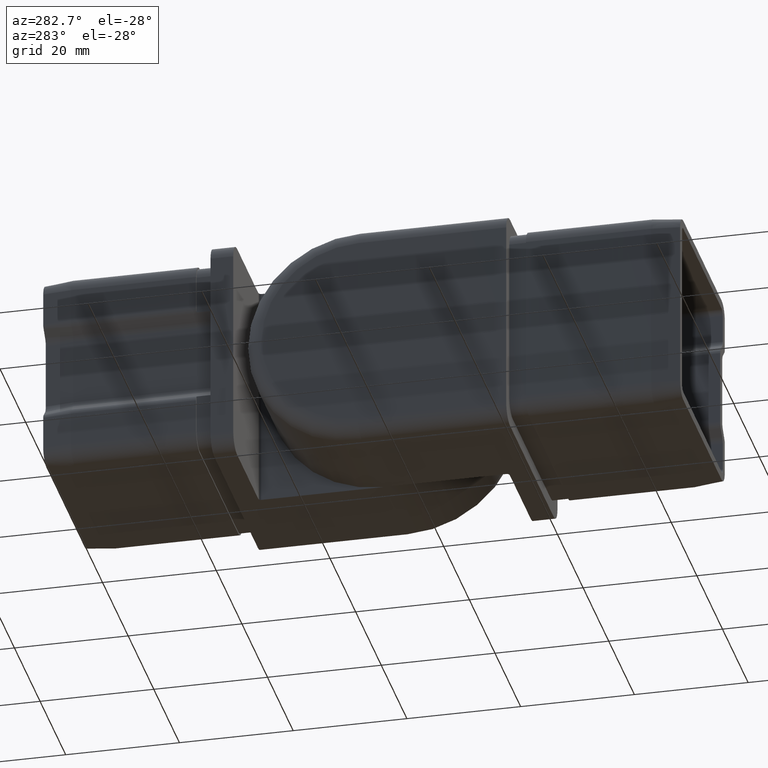
[diagram: clean part render]
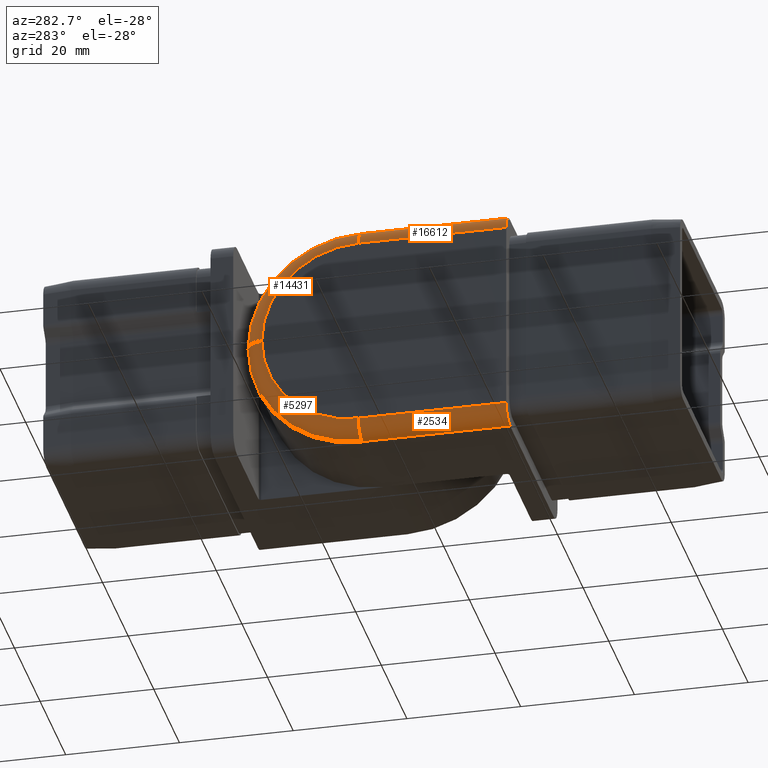
[diagram: same view with one multi-face feature highlighted, each face labeled with its STEP entity id]
A machine part, auxiliary view. The highlighted faces form ONE feature: a constant-radius fillet chain: 4 tangent blend faces with common blend radius 3 mm. The faces share edges in the B-rep.
Their STEP definitions:
[1] entity #14431 (Torus):
#364 = DIRECTION ( 'NONE',  ( -1.000000000000000000, -0.0000000000000000000, 8.673617379884035500E-017 ) ) ;
#618 = DIRECTION ( 'NONE',  ( 0.0000000000000000000, 1.000000000000000000, -0.0000000000000000000 ) ) ;
#914 = DIRECTION ( 'NONE',  ( 1.000000000000000000, 0.0000000000000000000, -8.673617379884035500E-017 ) ) ;
#1355 = CIRCLE ( 'NONE', #4157, 2.999999999999999100 ) ;
#2334 = AXIS2_PLACEMENT_3D ( 'NONE', #14893, #914, #11970 ) ;
#2539 = CARTESIAN_POINT ( 'NONE',  ( -19.99999999999999600, 43.00000000000000000, 2.602085213965211600E-016 ) ) ;
#2559 = VERTEX_POINT ( 'NONE', #2539 ) ;
#3044 = EDGE_CURVE ( 'NONE', #2559, #5501, #1355, .T. ) ;
#3196 = CIRCLE ( 'NONE', #2334, 20.00000000000000000 ) ;
#3360 = TOROIDAL_SURFACE ( 'NONE', #16063, 17.00000000000000000, 3.000000000000000000 ) ;
#3495 = EDGE_CURVE ( 'NONE', #8238, #2559, #7438, .T. ) ;
#3861 = CARTESIAN_POINT ( 'NONE',  ( -16.99999999999999300, 46.00000000000000000, 0.0000000000000000000 ) ) ;
#3984 = EDGE_CURVE ( 'NONE', #5501, #4648, #3196, .T. ) ;
#4157 = AXIS2_PLACEMENT_3D ( 'NONE', #9261, #10730, #12054 ) ;
#4559 = EDGE_CURVE ( 'NONE', #8238, #4648, #17499, .T. ) ;
#4648 = VERTEX_POINT ( 'NONE', #10888 ) ;
#5501 = VERTEX_POINT ( 'NONE', #3861 ) ;
#6205 = DIRECTION ( 'NONE',  ( 0.0000000000000000000, 0.0000000000000000000, 1.000000000000000000 ) ) ;
#6498 = ORIENTED_EDGE ( 'NONE', *, *, #3495, .F. ) ;
#7438 = CIRCLE ( 'NONE', #16438, 17.00000000000000000 ) ;
#8038 = CARTESIAN_POINT ( 'NONE',  ( -16.99999999999999300, 26.00000000000000000, 0.0000000000000000000 ) ) ;
#8154 = FACE_OUTER_BOUND ( 'NONE', #15096, .T. ) ;
#8238 = VERTEX_POINT ( 'NONE', #11863 ) ;
#9168 = ORIENTED_EDGE ( 'NONE', *, *, #3984, .F. ) ;
#9261 = CARTESIAN_POINT ( 'NONE',  ( -16.99999999999999600, 43.00000000000000000, 9.629649721936179300E-032 ) ) ;
#9334 = ORIENTED_EDGE ( 'NONE', *, *, #3044, .F. ) ;
#9476 = DIRECTION ( 'NONE',  ( -8.673617379884035500E-017, 0.0000000000000000000, -1.000000000000000000 ) ) ;
#10140 = DIRECTION ( 'NONE',  ( 0.0000000000000000000, 0.0000000000000000000, -1.000000000000000000 ) ) ;
#10531 = CARTESIAN_POINT ( 'NONE',  ( -16.99999999999999300, 26.00000000000000000, 17.00000000000000000 ) ) ;
#10730 = DIRECTION ( 'NONE',  ( -8.673617379884037900E-017, 6.821001886371457400E-032, -1.000000000000000000 ) ) ;
#10769 = DIRECTION ( 'NONE',  ( 1.000000000000000000, 0.0000000000000000000, -8.673617379884035500E-017 ) ) ;
#10888 = CARTESIAN_POINT ( 'NONE',  ( -16.99999999999999300, 26.00000000000000000, 20.00000000000000000 ) ) ;
#11473 = ORIENTED_EDGE ( 'NONE', *, *, #4559, .T. ) ;
#11863 = CARTESIAN_POINT ( 'NONE',  ( -19.99999999999999300, 26.00000000000000000, 17.00000000000000000 ) ) ;
#11970 = DIRECTION ( 'NONE',  ( 0.0000000000000000000, 0.0000000000000000000, -1.000000000000000000 ) ) ;
#12054 = DIRECTION ( 'NONE',  ( -1.000000000000000000, 0.0000000000000000000, 8.673617379884041600E-017 ) ) ;
#14378 = CARTESIAN_POINT ( 'NONE',  ( -19.99999999999999600, 26.00000000000000000, 2.602085213965211600E-016 ) ) ;
#14431 = ADVANCED_FACE ( 'NONE', ( #8154 ), #3360, .T. ) ;
#14893 = CARTESIAN_POINT ( 'NONE',  ( -16.99999999999999300, 26.00000000000000000, 0.0000000000000000000 ) ) ;
#15096 = EDGE_LOOP ( 'NONE', ( #11473, #9168, #9334, #6498 ) ) ;
#16063 = AXIS2_PLACEMENT_3D ( 'NONE', #8038, #10769, #9476 ) ;
#16438 = AXIS2_PLACEMENT_3D ( 'NONE', #14378, #364, #10140 ) ;
#17178 = AXIS2_PLACEMENT_3D ( 'NONE', #10531, #618, #6205 ) ;
#17499 = CIRCLE ( 'NONE', #17178, 2.999999999999999100 ) ;
[2] entity #16612 (Cylinder):
#134 = EDGE_CURVE ( 'NONE', #1983, #8238, #17917, .T. ) ;
#618 = DIRECTION ( 'NONE',  ( 0.0000000000000000000, 1.000000000000000000, -0.0000000000000000000 ) ) ;
#851 = CARTESIAN_POINT ( 'NONE',  ( -16.99999999999999300, 4.000000000000000000, 17.00000000000000000 ) ) ;
#1007 = ORIENTED_EDGE ( 'NONE', *, *, #7433, .F. ) ;
#1983 = VERTEX_POINT ( 'NONE', #17504 ) ;
#2239 = DIRECTION ( 'NONE',  ( 0.0000000000000000000, -1.000000000000000000, 0.0000000000000000000 ) ) ;
#3095 = ORIENTED_EDGE ( 'NONE', *, *, #14735, .F. ) ;
#3424 = AXIS2_PLACEMENT_3D ( 'NONE', #15264, #5306, #17981 ) ;
#3542 = CIRCLE ( 'NONE', #3424, 2.999999999999999100 ) ;
#3805 = ORIENTED_EDGE ( 'NONE', *, *, #134, .F. ) ;
#3930 = EDGE_LOOP ( 'NONE', ( #1007, #3095, #17537, #3805 ) ) ;
#4017 = VECTOR ( 'NONE', #13082, 1000.000000000000000 ) ;
#4160 = AXIS2_PLACEMENT_3D ( 'NONE', #851, #2239, #13527 ) ;
#4559 = EDGE_CURVE ( 'NONE', #8238, #4648, #17499, .T. ) ;
#4648 = VERTEX_POINT ( 'NONE', #10888 ) ;
#5306 = DIRECTION ( 'NONE',  ( -0.0000000000000000000, -1.000000000000000000, -0.0000000000000000000 ) ) ;
#6205 = DIRECTION ( 'NONE',  ( 0.0000000000000000000, 0.0000000000000000000, 1.000000000000000000 ) ) ;
#7433 = EDGE_CURVE ( 'NONE', #18080, #1983, #3542, .T. ) ;
#7479 = DIRECTION ( 'NONE',  ( 0.0000000000000000000, -1.000000000000000000, 0.0000000000000000000 ) ) ;
#8238 = VERTEX_POINT ( 'NONE', #11863 ) ;
#10353 = FACE_OUTER_BOUND ( 'NONE', #3930, .T. ) ;
#10457 = CARTESIAN_POINT ( 'NONE',  ( -19.99999999999999300, 4.000000000000000000, 17.00000000000000400 ) ) ;
#10531 = CARTESIAN_POINT ( 'NONE',  ( -16.99999999999999300, 26.00000000000000000, 17.00000000000000000 ) ) ;
#10888 = CARTESIAN_POINT ( 'NONE',  ( -16.99999999999999300, 26.00000000000000000, 20.00000000000000000 ) ) ;
#11863 = CARTESIAN_POINT ( 'NONE',  ( -19.99999999999999300, 26.00000000000000000, 17.00000000000000000 ) ) ;
#13082 = DIRECTION ( 'NONE',  ( -0.0000000000000000000, 1.000000000000000000, -0.0000000000000000000 ) ) ;
#13527 = DIRECTION ( 'NONE',  ( 0.0000000000000000000, 0.0000000000000000000, -1.000000000000000000 ) ) ;
#14735 = EDGE_CURVE ( 'NONE', #4648, #18080, #15864, .T. ) ;
#15157 = CYLINDRICAL_SURFACE ( 'NONE', #4160, 2.999999999999999100 ) ;
#15264 = CARTESIAN_POINT ( 'NONE',  ( -16.99999999999999300, 0.0000000000000000000, 17.00000000000000000 ) ) ;
#15437 = CARTESIAN_POINT ( 'NONE',  ( -16.99999999999999300, 0.0000000000000000000, 20.00000000000000000 ) ) ;
#15864 = LINE ( 'NONE', #15920, #17861 ) ;
#15920 = CARTESIAN_POINT ( 'NONE',  ( -16.99999999999999300, 4.000000000000000000, 20.00000000000000000 ) ) ;
#16612 = ADVANCED_FACE ( 'NONE', ( #10353 ), #15157, .T. ) ;
#17178 = AXIS2_PLACEMENT_3D ( 'NONE', #10531, #618, #6205 ) ;
#17499 = CIRCLE ( 'NONE', #17178, 2.999999999999999100 ) ;
#17504 = CARTESIAN_POINT ( 'NONE',  ( -19.99999999999999300, 0.0000000000000000000, 17.00000000000000400 ) ) ;
#17537 = ORIENTED_EDGE ( 'NONE', *, *, #4559, .F. ) ;
#17861 = VECTOR ( 'NONE', #7479, 1000.000000000000000 ) ;
#17917 = LINE ( 'NONE', #10457, #4017 ) ;
#17981 = DIRECTION ( 'NONE',  ( 0.0000000000000000000, 0.0000000000000000000, 1.000000000000000000 ) ) ;
#18080 = VERTEX_POINT ( 'NONE', #15437 ) ;
[3] entity #5297 (Torus):
#77 = DIRECTION ( 'NONE',  ( -8.673617379884035500E-017, 0.0000000000000000000, -1.000000000000000000 ) ) ;
#1355 = CIRCLE ( 'NONE', #4157, 2.999999999999999100 ) ;
#1412 = CARTESIAN_POINT ( 'NONE',  ( -16.99999999999999600, 26.00000000000000000, -17.00000000000000000 ) ) ;
#1514 = DIRECTION ( 'NONE',  ( 1.000000000000000000, 0.0000000000000000000, -8.673617379884035500E-017 ) ) ;
#1580 = AXIS2_PLACEMENT_3D ( 'NONE', #1412, #8359, #11089 ) ;
#2339 = EDGE_CURVE ( 'NONE', #6635, #5501, #11673, .T. ) ;
#2539 = CARTESIAN_POINT ( 'NONE',  ( -19.99999999999999600, 43.00000000000000000, 2.602085213965211600E-016 ) ) ;
#2559 = VERTEX_POINT ( 'NONE', #2539 ) ;
#2560 = CIRCLE ( 'NONE', #1580, 2.999999999999999100 ) ;
#2615 = CARTESIAN_POINT ( 'NONE',  ( -19.99999999999999600, 26.00000000000000000, 2.602085213965211600E-016 ) ) ;
#3044 = EDGE_CURVE ( 'NONE', #2559, #5501, #1355, .T. ) ;
#3452 = CARTESIAN_POINT ( 'NONE',  ( -16.99999999999999300, 26.00000000000000000, 0.0000000000000000000 ) ) ;
#3523 = AXIS2_PLACEMENT_3D ( 'NONE', #12792, #1514, #77 ) ;
#3658 = ORIENTED_EDGE ( 'NONE', *, *, #2339, .F. ) ;
#3861 = CARTESIAN_POINT ( 'NONE',  ( -16.99999999999999300, 46.00000000000000000, 0.0000000000000000000 ) ) ;
#4010 = FACE_OUTER_BOUND ( 'NONE', #15587, .T. ) ;
#4157 = AXIS2_PLACEMENT_3D ( 'NONE', #9261, #10730, #12054 ) ;
#4997 = DIRECTION ( 'NONE',  ( 0.0000000000000000000, 0.0000000000000000000, -1.000000000000000000 ) ) ;
#5196 = EDGE_CURVE ( 'NONE', #2559, #14631, #17911, .T. ) ;
#5297 = ADVANCED_FACE ( 'NONE', ( #4010 ), #12366, .T. ) ;
#5501 = VERTEX_POINT ( 'NONE', #3861 ) ;
#5690 = CARTESIAN_POINT ( 'NONE',  ( -19.99999999999999600, 26.00000000000000000, -17.00000000000000000 ) ) ;
#6635 = VERTEX_POINT ( 'NONE', #8061 ) ;
#6743 = DIRECTION ( 'NONE',  ( -1.000000000000000000, -0.0000000000000000000, 8.673617379884035500E-017 ) ) ;
#8061 = CARTESIAN_POINT ( 'NONE',  ( -16.99999999999999600, 26.00000000000000000, -20.00000000000000000 ) ) ;
#8237 = DIRECTION ( 'NONE',  ( 0.0000000000000000000, 0.0000000000000000000, -1.000000000000000000 ) ) ;
#8359 = DIRECTION ( 'NONE',  ( 0.0000000000000000000, 1.000000000000000000, 0.0000000000000000000 ) ) ;
#9261 = CARTESIAN_POINT ( 'NONE',  ( -16.99999999999999600, 43.00000000000000000, 9.629649721936179300E-032 ) ) ;
#10730 = DIRECTION ( 'NONE',  ( -8.673617379884037900E-017, 6.821001886371457400E-032, -1.000000000000000000 ) ) ;
#10926 = ORIENTED_EDGE ( 'NONE', *, *, #3044, .T. ) ;
#11089 = DIRECTION ( 'NONE',  ( 0.0000000000000000000, 0.0000000000000000000, 1.000000000000000000 ) ) ;
#11591 = AXIS2_PLACEMENT_3D ( 'NONE', #3452, #14656, #4997 ) ;
#11673 = CIRCLE ( 'NONE', #11591, 20.00000000000000000 ) ;
#11897 = EDGE_CURVE ( 'NONE', #6635, #14631, #2560, .T. ) ;
#12054 = DIRECTION ( 'NONE',  ( -1.000000000000000000, 0.0000000000000000000, 8.673617379884041600E-017 ) ) ;
#12366 = TOROIDAL_SURFACE ( 'NONE', #3523, 17.00000000000000000, 3.000000000000000000 ) ;
#12792 = CARTESIAN_POINT ( 'NONE',  ( -16.99999999999999300, 26.00000000000000000, 0.0000000000000000000 ) ) ;
#14096 = AXIS2_PLACEMENT_3D ( 'NONE', #2615, #6743, #8237 ) ;
#14631 = VERTEX_POINT ( 'NONE', #5690 ) ;
#14656 = DIRECTION ( 'NONE',  ( 1.000000000000000000, 0.0000000000000000000, -8.673617379884035500E-017 ) ) ;
#15037 = ORIENTED_EDGE ( 'NONE', *, *, #5196, .F. ) ;
#15587 = EDGE_LOOP ( 'NONE', ( #10926, #3658, #16720, #15037 ) ) ;
#16720 = ORIENTED_EDGE ( 'NONE', *, *, #11897, .T. ) ;
#17911 = CIRCLE ( 'NONE', #14096, 17.00000000000000000 ) ;
[4] entity #2534 (Cylinder):
#72 = CYLINDRICAL_SURFACE ( 'NONE', #14435, 2.999999999999999100 ) ;
#293 = EDGE_CURVE ( 'NONE', #4732, #12174, #1869, .T. ) ;
#492 = EDGE_LOOP ( 'NONE', ( #9301, #5167, #15022, #11705 ) ) ;
#785 = CARTESIAN_POINT ( 'NONE',  ( -19.99999999999999600, 0.0000000000000000000, -17.00000000000000000 ) ) ;
#1080 = DIRECTION ( 'NONE',  ( 0.0000000000000000000, -1.000000000000000000, 0.0000000000000000000 ) ) ;
#1412 = CARTESIAN_POINT ( 'NONE',  ( -16.99999999999999600, 26.00000000000000000, -17.00000000000000000 ) ) ;
#1448 = CARTESIAN_POINT ( 'NONE',  ( -16.99999999999999600, 4.000000000000000000, -20.00000000000000000 ) ) ;
#1580 = AXIS2_PLACEMENT_3D ( 'NONE', #1412, #8359, #11089 ) ;
#1869 = CIRCLE ( 'NONE', #12379, 2.999999999999999100 ) ;
#2143 = DIRECTION ( 'NONE',  ( 0.0000000000000000000, -1.000000000000000000, 0.0000000000000000000 ) ) ;
#2534 = ADVANCED_FACE ( 'NONE', ( #10582 ), #72, .T. ) ;
#2560 = CIRCLE ( 'NONE', #1580, 2.999999999999999100 ) ;
#4702 = CARTESIAN_POINT ( 'NONE',  ( -16.99999999999999600, 0.0000000000000000000, -20.00000000000000000 ) ) ;
#4732 = VERTEX_POINT ( 'NONE', #785 ) ;
#5167 = ORIENTED_EDGE ( 'NONE', *, *, #8934, .F. ) ;
#5384 = CARTESIAN_POINT ( 'NONE',  ( -16.99999999999999600, 0.0000000000000000000, -17.00000000000000000 ) ) ;
#5690 = CARTESIAN_POINT ( 'NONE',  ( -19.99999999999999600, 26.00000000000000000, -17.00000000000000000 ) ) ;
#6635 = VERTEX_POINT ( 'NONE', #8061 ) ;
#7673 = VECTOR ( 'NONE', #2143, 1000.000000000000000 ) ;
#8061 = CARTESIAN_POINT ( 'NONE',  ( -16.99999999999999600, 26.00000000000000000, -20.00000000000000000 ) ) ;
#8359 = DIRECTION ( 'NONE',  ( 0.0000000000000000000, 1.000000000000000000, 0.0000000000000000000 ) ) ;
#8934 = EDGE_CURVE ( 'NONE', #14631, #4732, #11432, .T. ) ;
#9301 = ORIENTED_EDGE ( 'NONE', *, *, #293, .F. ) ;
#9439 = DIRECTION ( 'NONE',  ( 0.0000000000000000000, 0.0000000000000000000, 1.000000000000000000 ) ) ;
#10582 = FACE_OUTER_BOUND ( 'NONE', #492, .T. ) ;
#11089 = DIRECTION ( 'NONE',  ( 0.0000000000000000000, 0.0000000000000000000, 1.000000000000000000 ) ) ;
#11432 = LINE ( 'NONE', #11809, #7673 ) ;
#11705 = ORIENTED_EDGE ( 'NONE', *, *, #14586, .F. ) ;
#11809 = CARTESIAN_POINT ( 'NONE',  ( -19.99999999999999600, 4.000000000000000000, -17.00000000000000000 ) ) ;
#11897 = EDGE_CURVE ( 'NONE', #6635, #14631, #2560, .T. ) ;
#12142 = CARTESIAN_POINT ( 'NONE',  ( -16.99999999999999600, 4.000000000000000000, -17.00000000000000000 ) ) ;
#12174 = VERTEX_POINT ( 'NONE', #4702 ) ;
#12379 = AXIS2_PLACEMENT_3D ( 'NONE', #5384, #17942, #9439 ) ;
#13242 = VECTOR ( 'NONE', #15426, 1000.000000000000000 ) ;
#14435 = AXIS2_PLACEMENT_3D ( 'NONE', #12142, #1080, #17771 ) ;
#14586 = EDGE_CURVE ( 'NONE', #12174, #6635, #16983, .T. ) ;
#14631 = VERTEX_POINT ( 'NONE', #5690 ) ;
#15022 = ORIENTED_EDGE ( 'NONE', *, *, #11897, .F. ) ;
#15426 = DIRECTION ( 'NONE',  ( -0.0000000000000000000, 1.000000000000000000, -0.0000000000000000000 ) ) ;
#16983 = LINE ( 'NONE', #1448, #13242 ) ;
#17771 = DIRECTION ( 'NONE',  ( 0.0000000000000000000, 0.0000000000000000000, -1.000000000000000000 ) ) ;
#17942 = DIRECTION ( 'NONE',  ( -0.0000000000000000000, -1.000000000000000000, -0.0000000000000000000 ) ) ;